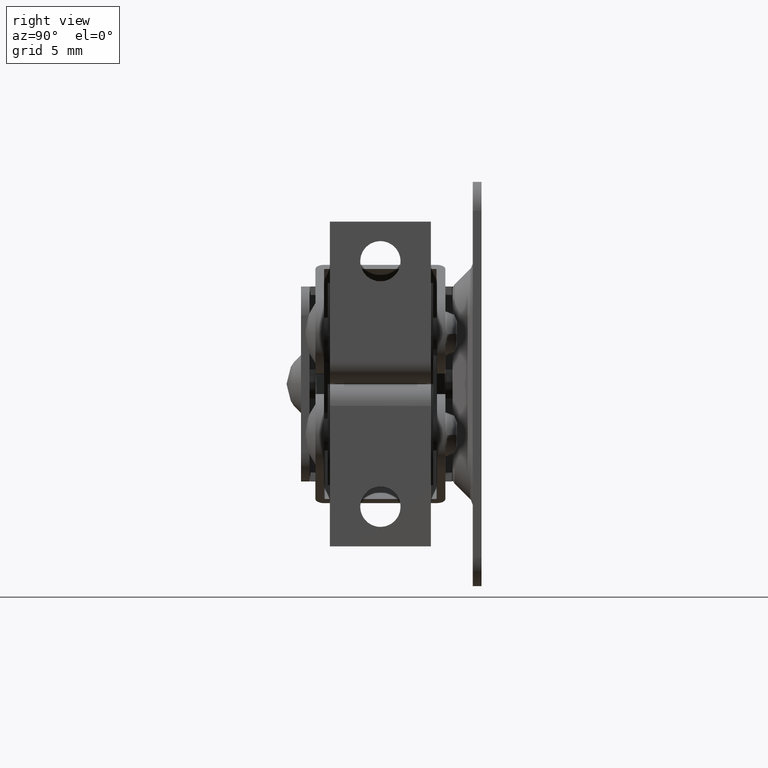
[diagram: clean part render]
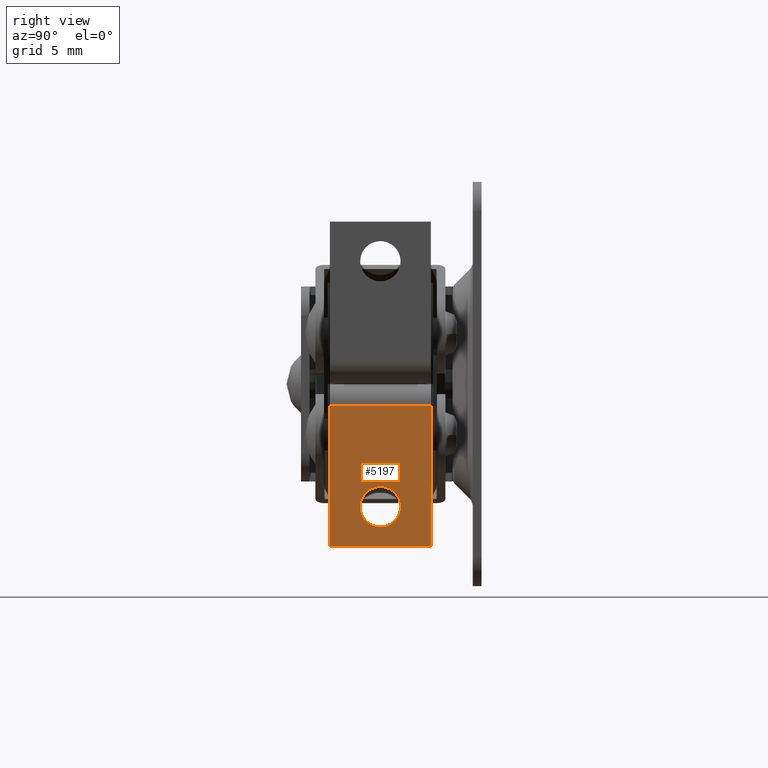
[diagram: same view with one face highlighted and labeled with its STEP entity id]
A machine part, right view. The second image highlights one B-rep face of the part: STEP entity #5197.
In plain terms, the highlighted face is a freeform B-spline surface patch.
Its self-contained STEP definition (entity closure, byte-faithful):
#4460=CARTESIAN_POINT('',(31.299996000001340,-6.018723163554933,-19.498550760079329));
#4461=VERTEX_POINT('',#4460);
#4467=CARTESIAN_POINT('',(31.299996000001350,-6.999995999999999,-17.100000000000001));
#4468=VERTEX_POINT('',#4467);
#4469=CARTESIAN_POINT('',(31.299996000001329,-6.018723163554932,-19.498550760079326));
#4470=CARTESIAN_POINT('',(31.299996000001350,-5.599995999999999,-19.087068942668711));
#4471=CARTESIAN_POINT('',(31.299996000001350,-5.599995999999999,-18.500000000000000));
#4472=CARTESIAN_POINT('',(31.299996000001343,-5.599996000000000,-17.099999999999998));
#4473=CARTESIAN_POINT('',(31.299996000001350,-6.999995999999999,-17.100000000000001));
#4481=(BOUNDED_CURVE()B_SPLINE_CURVE(2,(#4469,#4470,#4471,#4472,#4473),.UNSPECIFIED.,.F.,.U.)B_SPLINE_CURVE_WITH_KNOTS((3,2,3),(0.123683202039898,0.250000000000000,0.500000000000000),.UNSPECIFIED.)CURVE()GEOMETRIC_REPRESENTATION_ITEM()RATIONAL_B_SPLINE_CURVE((0.853569642247938,0.852010665821029,1.0,0.707106781186547,1.0))REPRESENTATION_ITEM(''));
#4482=EDGE_CURVE('',#4461,#4468,#4481,.T.);
#4484=CARTESIAN_POINT('',(31.299996000001350,-8.105170655373637,-19.359411997308740));
#4485=VERTEX_POINT('',#4484);
#4486=CARTESIAN_POINT('',(31.299996000001350,-6.999995999999999,-17.100000000000001));
#4487=CARTESIAN_POINT('',(31.299996000001343,-8.399996000000000,-17.099999999999998));
#4488=CARTESIAN_POINT('',(31.299996000001350,-8.399996000000000,-18.500000000000000));
#4489=CARTESIAN_POINT('',(31.299996000001350,-8.399996000000000,-18.980276612112320));
#4490=CARTESIAN_POINT('',(31.299996000001350,-8.105170655373637,-19.359411997308744));
#4498=(BOUNDED_CURVE()B_SPLINE_CURVE(2,(#4486,#4487,#4488,#4489,#4490),.UNSPECIFIED.,.F.,.U.)B_SPLINE_CURVE_WITH_KNOTS((3,2,3),(0.500000000000000,0.750000000000000,0.856197689750477),.UNSPECIFIED.)CURVE()GEOMETRIC_REPRESENTATION_ITEM()RATIONAL_B_SPLINE_CURVE((1.0,0.707106781186547,1.0,0.875581667273722,0.856866850532539))REPRESENTATION_ITEM(''));
#4499=EDGE_CURVE('',#4468,#4485,#4498,.T.);
#4547=CARTESIAN_POINT('',(31.299996000001350,-6.999995999999999,-19.899999999999999));
#4548=VERTEX_POINT('',#4547);
#4549=CARTESIAN_POINT('',(31.299996000001350,-8.105170655373637,-19.359411997308744));
#4550=CARTESIAN_POINT('',(31.299996000001357,-7.684795637855534,-19.899999999999999));
#4551=CARTESIAN_POINT('',(31.299996000001350,-6.999995999999999,-19.899999999999999));
#4559=(BOUNDED_CURVE()B_SPLINE_CURVE(2,(#4549,#4550,#4551),.UNSPECIFIED.,.F.,.U.)B_SPLINE_CURVE_WITH_KNOTS((3,3),(0.856197689750477,1.0),.UNSPECIFIED.)CURVE()GEOMETRIC_REPRESENTATION_ITEM()RATIONAL_B_SPLINE_CURVE((0.856866850532539,0.831525113912826,1.0))REPRESENTATION_ITEM(''));
#4560=EDGE_CURVE('',#4485,#4548,#4559,.T.);
#4562=CARTESIAN_POINT('',(31.299996000001350,-6.999995999999999,-19.899999999999999));
#4563=CARTESIAN_POINT('',(31.299996000001357,-6.427241096621913,-19.900000000000002));
#4564=CARTESIAN_POINT('',(31.299996000001329,-6.018723163554932,-19.498550760079326));
#4572=(BOUNDED_CURVE()B_SPLINE_CURVE(2,(#4562,#4563,#4564),.UNSPECIFIED.,.F.,.U.)B_SPLINE_CURVE_WITH_KNOTS((3,3),(0.0,0.123683202039898),.UNSPECIFIED.)CURVE()GEOMETRIC_REPRESENTATION_ITEM()RATIONAL_B_SPLINE_CURVE((1.0,0.855096115365519,0.853569642247938))REPRESENTATION_ITEM(''));
#4573=EDGE_CURVE('',#4548,#4461,#4572,.T.);
#4681=CARTESIAN_POINT('',(31.299996000000050,-10.499995999999960,-21.250000000000000));
#4682=VERTEX_POINT('',#4681);
#4688=CARTESIAN_POINT('',(31.299996000000050,-10.499995999999960,-11.525000000000000));
#4689=VERTEX_POINT('',#4688);
#4690=CARTESIAN_POINT('',(31.299996000000050,-10.499995999999960,-21.250000000000000));
#4691=CARTESIAN_POINT('',(31.299996000000050,-10.499995999999960,-11.525000000000000));
#4692=QUASI_UNIFORM_CURVE('',1,(#4690,#4691),.UNSPECIFIED.,.F.,.U.);
#4693=EDGE_CURVE('',#4682,#4689,#4692,.T.);
#4885=CARTESIAN_POINT('',(31.299996000000050,-3.499996000000060,-11.525000000000000));
#4886=VERTEX_POINT('',#4885);
#4900=CARTESIAN_POINT('',(31.299996000000050,-3.499996000000060,-21.250000000000000));
#4901=VERTEX_POINT('',#4900);
#4902=CARTESIAN_POINT('',(31.299996000000050,-3.499996000000060,-21.250000000000000));
#4903=CARTESIAN_POINT('',(31.299996000000050,-3.499996000000060,-11.525000000000000));
#4904=QUASI_UNIFORM_CURVE('',1,(#4902,#4903),.UNSPECIFIED.,.F.,.U.);
#4905=EDGE_CURVE('',#4901,#4886,#4904,.T.);
#5166=CARTESIAN_POINT('',(31.299996000000050,-3.499996000000060,-11.525000000000000));
#5167=CARTESIAN_POINT('',(31.299996000000050,-10.499995999999960,-11.525000000000000));
#5168=QUASI_UNIFORM_CURVE('',1,(#5166,#5167),.UNSPECIFIED.,.F.,.U.);
#5169=EDGE_CURVE('',#4886,#4689,#5168,.T.);
#5176=CARTESIAN_POINT('',(31.299996000000050,-10.849646183565570,-11.039235812392230));
#5177=CARTESIAN_POINT('',(31.299996000000050,-10.849646183565570,-21.735764013711218));
#5178=CARTESIAN_POINT('',(31.299996000000050,-3.150345816434449,-11.039235812392230));
#5179=CARTESIAN_POINT('',(31.299996000000050,-3.150345816434449,-21.735764013711218));
#5180=B_SPLINE_SURFACE_WITH_KNOTS('',1,1,((#5176,#5178),(#5177,#5179)),.UNSPECIFIED.,.F.,.F.,.U.,(2,2),(2,2),(0.0,10.696528201319000),(0.0,7.699300367131121),.UNSPECIFIED.);
#5181=ORIENTED_EDGE('',*,*,#4693,.F.);
#5182=CARTESIAN_POINT('',(31.299996000000050,-3.499996000000060,-21.250000000000000));
#5183=CARTESIAN_POINT('',(31.299996000000050,-10.499995999999960,-21.250000000000000));
#5184=QUASI_UNIFORM_CURVE('',1,(#5182,#5183),.UNSPECIFIED.,.F.,.U.);
#5185=EDGE_CURVE('',#4901,#4682,#5184,.T.);
#5186=ORIENTED_EDGE('',*,*,#5185,.F.);
#5187=ORIENTED_EDGE('',*,*,#4905,.T.);
#5188=ORIENTED_EDGE('',*,*,#5169,.T.);
#5189=EDGE_LOOP('',(#5181,#5186,#5187,#5188));
#5190=FACE_OUTER_BOUND('',#5189,.T.);
#5191=ORIENTED_EDGE('',*,*,#4573,.F.);
#5192=ORIENTED_EDGE('',*,*,#4560,.F.);
#5193=ORIENTED_EDGE('',*,*,#4499,.F.);
#5194=ORIENTED_EDGE('',*,*,#4482,.F.);
#5195=EDGE_LOOP('',(#5191,#5192,#5193,#5194));
#5196=FACE_BOUND('',#5195,.T.);
#5197=ADVANCED_FACE('',(#5190,#5196),#5180,.T.);